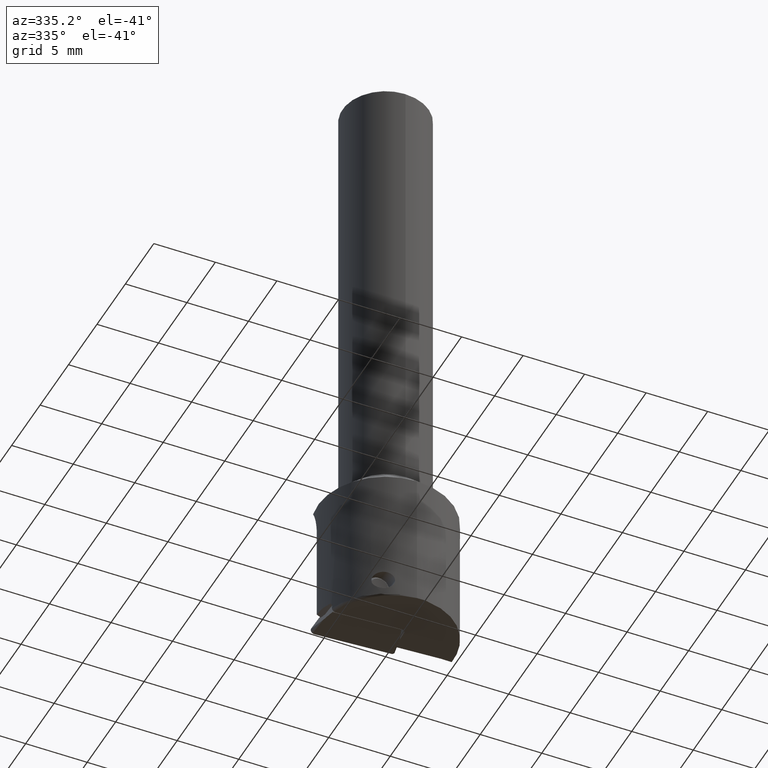
[diagram: clean part render]
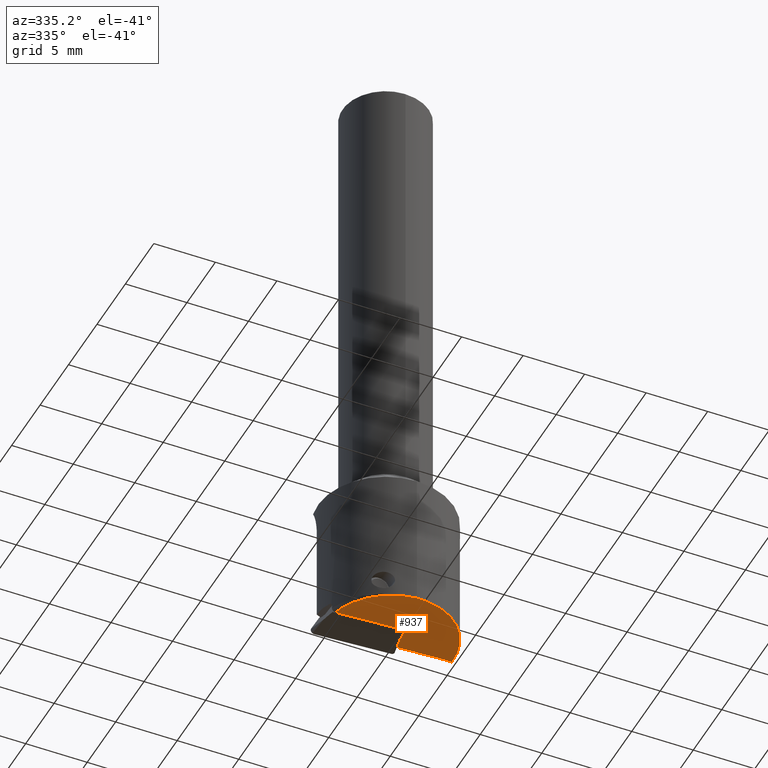
[diagram: same view with one face highlighted and labeled with its STEP entity id]
A machine part, auxiliary view. The second image highlights one B-rep face of the part: STEP entity #937.
In plain terms, the highlighted planar face has unit normal (-0.0521, 0.0001, 0.9986).
Its self-contained STEP definition (entity closure, byte-faithful):
#563=EDGE_CURVE('NONE',#1473,#1123,#1596,.T.);
#577=VERTEX_POINT('NONE',#1613);
#607=EDGE_CURVE('NONE',#1429,#969,#1646,.T.);
#649=EDGE_CURVE('NONE',#757,#1173,#1693,.T.);
#757=VERTEX_POINT('NONE',#1812);
#791=EDGE_CURVE('NONE',#931,#969,#1851,.T.);
#901=EDGE_CURVE('NONE',#577,#1473,#1974,.T.);
#931=VERTEX_POINT('NONE',#2008);
#937=ADVANCED_FACE('NONE',(#2014),#2015,.F.);
#969=VERTEX_POINT('NONE',#2052);
#997=VERTEX_POINT('NONE',#2082);
#1071=EDGE_CURVE('NONE',#931,#1123,#2165,.T.);
#1097=EDGE_CURVE('NONE',#1379,#1429,#2192,.T.);
#1119=EDGE_CURVE('NONE',#1173,#1379,#2216,.T.);
#1123=VERTEX_POINT('NONE',#2220);
#1173=VERTEX_POINT('NONE',#2276);
#1379=VERTEX_POINT('NONE',#2501);
#1429=VERTEX_POINT('NONE',#2556);
#1447=EDGE_CURVE('NONE',#757,#997,#2575,.T.);
#1473=VERTEX_POINT('NONE',#2602);
#1549=EDGE_CURVE('NONE',#997,#577,#2686,.T.);
#1596=LINE('',#2737,#2738);
#1613=CARTESIAN_POINT('',(-4.87553511708996,-1.80808111599635,-16.6697561106386));
#1646=LINE('',#2820,#2821);
#1693=(B_SPLINE_CURVE(3,(#2906,#2907,#2908,#2909),.UNSPECIFIED.,.F.,.F.)B_SPLINE_CURVE_WITH_KNOTS((4,4),(4.87213223868226,6.33281228063552),.UNSPECIFIED.)RATIONAL_B_SPLINE_CURVE((1.0,0.829965073072177,0.829965073072177,1.0))BOUNDED_CURVE()REPRESENTATION_ITEM('')GEOMETRIC_REPRESENTATION_ITEM()CURVE());
#1812=CARTESIAN_POINT('',(0.862461239299913,-5.43195734617875,-16.3697561106386));
#1851=LINE('',#3163,#3164);
#1974=LINE('',#3343,#3344);
#2008=CARTESIAN_POINT('',(0.79429956003988,-1.61375817163316,-16.3737696264397));
#2014=FACE_OUTER_BOUND('',#3415,.T.);
#2015=PLANE('',#3416);
#2052=CARTESIAN_POINT('',(0.865827096518691,-0.309105491158444,-16.3701907818327));
#2082=CARTESIAN_POINT('',(5.57614364280296E-014,-5.49660283867882,-16.4147756184954));
#2165=LINE('',#3644,#3645);
#2192=LINE('',#3677,#3678);
#2216=(B_SPLINE_CURVE(3,(#3708,#3709,#3710,#3711),.UNSPECIFIED.,.F.,.F.)B_SPLINE_CURVE_WITH_KNOTS((4,4),(4.51171705851309,4.7125516476058),.UNSPECIFIED.)RATIONAL_B_SPLINE_CURVE((1.0,0.99664161247102,0.99664161247102,1.0))BOUNDED_CURVE()REPRESENTATION_ITEM('')GEOMETRIC_REPRESENTATION_ITEM()CURVE());
#2220=CARTESIAN_POINT('',(0.552671711374019,-1.81342056323982,-16.3863606966152));
#2276=CARTESIAN_POINT('',(5.49383696340205,0.260298712169993,-16.1286403783753));
#2501=CARTESIAN_POINT('',(4.61732304459515,0.2,-16.1743940637461));
#2556=CARTESIAN_POINT('',(0.991738964882297,0.200000000000001,-16.3636778598889));
#2575=B_SPLINE_CURVE_WITH_KNOTS('',3,(#4317,#4318,#4319,#4320),.UNSPECIFIED.,.F.,.F.,(4,4),(3.8793416434005E-006,0.000871211397623062),.UNSPECIFIED.);
#2602=CARTESIAN_POINT('',(-4.87549071713006,-1.78862667721753,-16.6697561106386));
#2686=B_SPLINE_CURVE_WITH_KNOTS('',3,(#4480,#4481,#4482,#4483,#4484,#4485,#4486,#4487,#4488,#4489,#4490,#4491,#4492,#4493,#4494,#4495,#4496,#4497,#4498,#4499),.UNSPECIFIED.,.F.,.F.,(4,2,2,2,2,2,2,2,2,4),(0.000871211397623062,0.00169866440492193,0.00252611741222081,0.00418102342681855,0.00583592944141629,0.00666338244871517,0.0070771089523646,0.00728397220418932,0.00738740383010168,0.00749083545601404),.UNSPECIFIED.);
#2737=CARTESIAN_POINT('',(-2.34471890826101,-1.80018632905256,-16.5376286855625));
#2738=VECTOR('',#4526,1000.0);
#2820=CARTESIAN_POINT('',(1.21040923757903,1.08415999246025,-16.3523669133038));
#2821=VECTOR('',#4600,1000.0);
#2906=CARTESIAN_POINT('',(0.862461239299913,-5.43195734617875,-16.3697561106386));
#2907=CARTESIAN_POINT('',(3.77325322541117,-4.96979516343411,-16.2178451099003));
#2908=CARTESIAN_POINT('',(5.63332174892094,-2.68365235131213,-16.1210074074934));
#2909=CARTESIAN_POINT('',(5.49383696340205,0.260298712169993,-16.1286403783753));
#3163=CARTESIAN_POINT('',(0.188022632514158,-12.6721680868234,-16.4041043900741));
#3164=VECTOR('',#4849,1000.0);
#3343=CARTESIAN_POINT('',(-4.87522703514174,-1.67309087245369,-16.6697561106386));
#3344=VECTOR('',#5020,1000.0);
#3415=EDGE_LOOP('',(#5066,#5067,#5068,#5069,#5070,#5071,#5072,#5073,#5074,#5075));
#3416=AXIS2_PLACEMENT_3D('',#5076,#5077,#5078);
#3644=CARTESIAN_POINT('',(1.50792078798422,-1.0240772972664,-16.3365832879883));
#3645=VECTOR('',#5274,1000.0);
#3677=CARTESIAN_POINT('',(4.49601100650161,0.2,-16.1807274992928));
#3678=VECTOR('',#5287,1000.0);
#3708=CARTESIAN_POINT('',(5.49383696340205,0.260298712169993,-16.1286403783753));
#3709=CARTESIAN_POINT('',(5.20511628281021,0.220167300333235,-16.1437090704082));
#3710=CARTESIAN_POINT('',(4.9119604456336,0.199999999999999,-16.1590116909951));
#3711=CARTESIAN_POINT('',(4.61732304459515,0.2,-16.1743940637461));
#4317=CARTESIAN_POINT('',(0.862461239299913,-5.43195734617875,-16.3697561106386));
#4318=CARTESIAN_POINT('',(0.576850323648271,-5.47730533559987,-16.3846618270984));
#4319=CARTESIAN_POINT('',(0.287049524007208,-5.4988775462936,-16.399789121134));
#4320=CARTESIAN_POINT('',(5.57614364280296E-014,-5.49660283867882,-16.4147756184954));
#4480=CARTESIAN_POINT('',(5.57614364280296E-014,-5.49660283867882,-16.4147756184954));
#4481=CARTESIAN_POINT('',(-0.273851277888142,-5.4944327198142,-16.4290730519006));
#4482=CARTESIAN_POINT('',(-0.545016962849199,-5.4708920293644,-16.4432328227215));
#4483=CARTESIAN_POINT('',(-1.08205985132663,-5.38172762458264,-16.4712812785946));
#4484=CARTESIAN_POINT('',(-1.34976819746279,-5.31546635301765,-16.4852656395544));
#4485=CARTESIAN_POINT('',(-2.13153633799636,-5.05430080255049,-16.5261111584923));
#4486=CARTESIAN_POINT('',(-2.61498427913646,-4.80300577384165,-16.5513808577643));
#4487=CARTESIAN_POINT('',(-3.50090221530943,-4.1450711329138,-16.5977110848085));
#4488=CARTESIAN_POINT('',(-3.88107798448373,-3.75563635461041,-16.6176056299453));
#4489=CARTESIAN_POINT('',(-4.35505728689671,-3.07875125769904,-16.6424317020213));
#4490=CARTESIAN_POINT('',(-4.49464312803333,-2.84015822171402,-16.6497476014677));
#4491=CARTESIAN_POINT('',(-4.67112716939519,-2.46587666817898,-16.6590060425364));
#4492=CARTESIAN_POINT('',(-4.72460338837266,-2.33823799103775,-16.6618131270223));
#4493=CARTESIAN_POINT('',(-4.79416112513074,-2.14316769043153,-16.6654678268704));
#4494=CARTESIAN_POINT('',(-4.81566282923414,-2.07740487987844,-16.6665982194358));
#4495=CARTESIAN_POINT('',(-4.84384820992401,-1.97769954871099,-16.6680815964032));
#4496=CARTESIAN_POINT('',(-4.85258735659184,-1.94428773442392,-16.6685418291573));
#4497=CARTESIAN_POINT('',(-4.86761092439802,-1.87680286706492,-16.6693342176148));
#4498=CARTESIAN_POINT('',(-4.87561416220274,-1.84271579383815,-16.6697561106386));
#4499=CARTESIAN_POINT('',(-4.87553511708996,-1.80808111599635,-16.6697561106386));
#4526=DIRECTION('',(0.998629534754574,-0.00456137913876276,0.0521368021287827));
#4600=DIRECTION('',(-0.240067580333391,-0.970676751804735,-0.0124177445085463));
#4849=DIRECTION('',(0.054742548320817,0.998496745710351,0.00273901609753526));
#5020=DIRECTION('',(0.00228224750015294,0.999997395669783,0.0));
#5066=ORIENTED_EDGE('',*,*,#1119,.F.);
#5067=ORIENTED_EDGE('',*,*,#649,.F.);
#5068=ORIENTED_EDGE('',*,*,#1447,.T.);
#5069=ORIENTED_EDGE('',*,*,#1549,.T.);
#5070=ORIENTED_EDGE('',*,*,#901,.T.);
#5071=ORIENTED_EDGE('',*,*,#563,.T.);
#5072=ORIENTED_EDGE('',*,*,#1071,.F.);
#5073=ORIENTED_EDGE('',*,*,#791,.T.);
#5074=ORIENTED_EDGE('',*,*,#607,.F.);
#5075=ORIENTED_EDGE('',*,*,#1097,.F.);
#5076=CARTESIAN_POINT('',(6.66350388321155,-1.84133263815752,-16.0673242204272));
#5077=DIRECTION('',(-0.0521368021287827,0.000118989396212063,0.998639944977822));
#5078=DIRECTION('',(-0.00228224750015294,-0.999997395669783,0.0));
#5274=DIRECTION('',(-0.770251613062791,-0.636475803812129,-0.04013731101946));
#5287=DIRECTION('',(-0.998639952047432,3.01622782563365E-017,-0.0521368024978716));